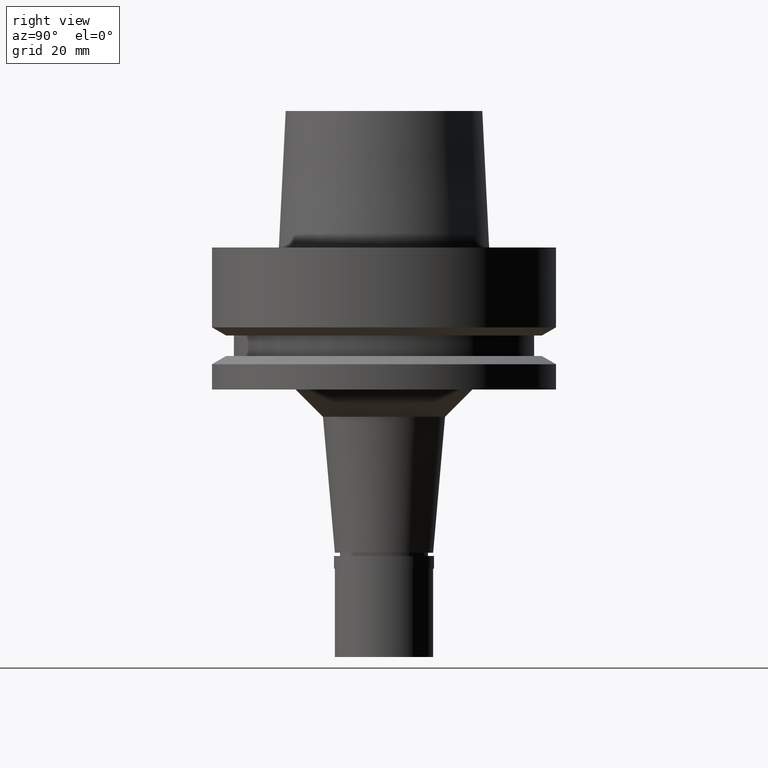
[diagram: clean part render]
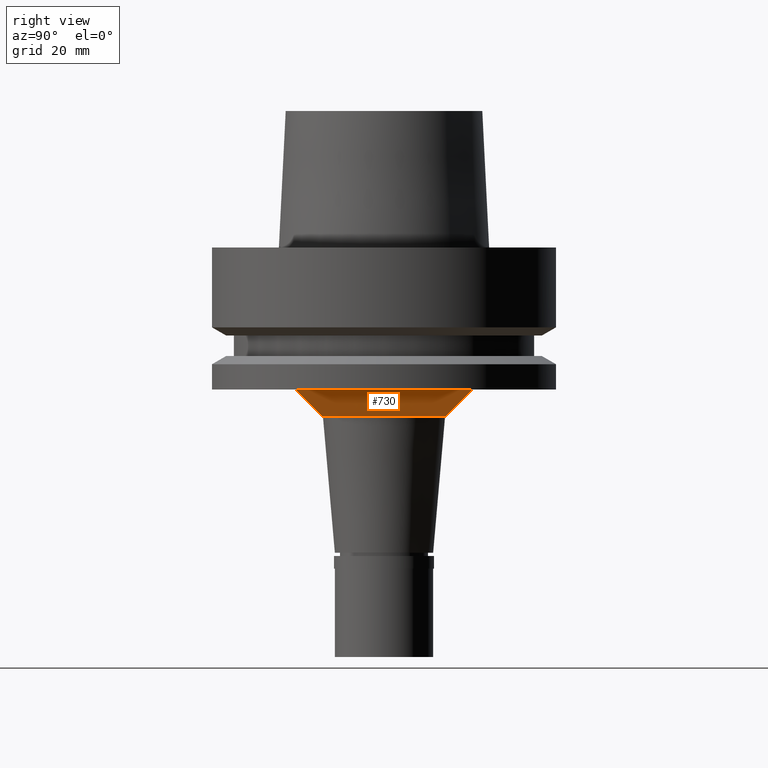
[diagram: same view with one face highlighted and labeled with its STEP entity id]
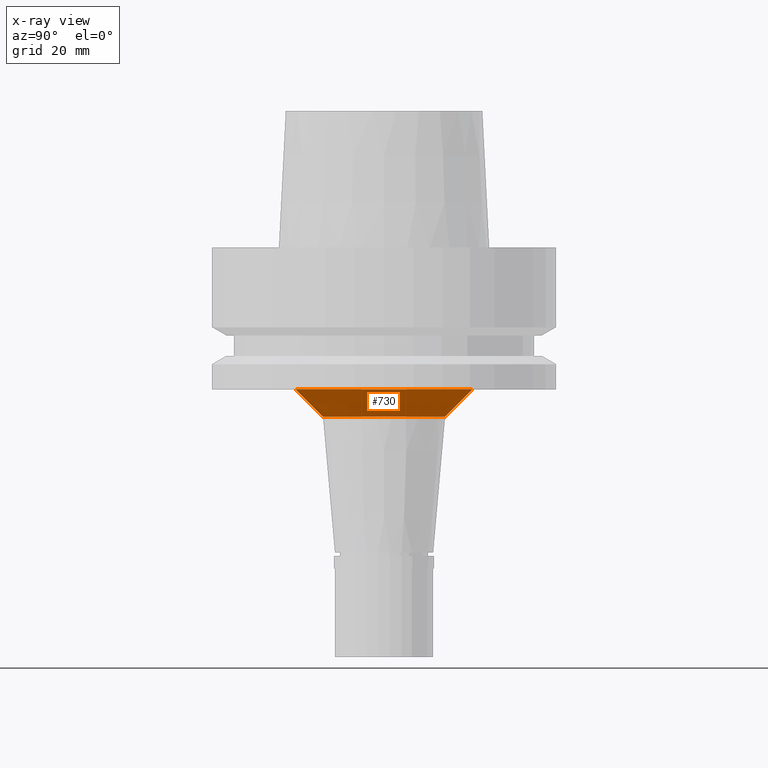
[diagram: x-ray of the same camera — body ghosted, the highlighted face saturated]
A machine part, right view. The second image highlights one B-rep face of the part: STEP entity #730.
The next image is the same camera in x-ray: the body ghosted, the highlighted face saturated — about 0% of this face is hidden behind the body in this view.
In plain terms, the highlighted conical surface has half-angle 45 deg.
Its self-contained STEP definition (entity closure, byte-faithful):
#213 = AXIS2_PLACEMENT_3D ( 'NONE', #1976, #1747, #2197 ) ;
#261 = DIRECTION ( 'NONE',  ( 0.0000000000000000000, 0.0000000000000000000, 1.000000000000000000 ) ) ;
#321 = DIRECTION ( 'NONE',  ( 0.0000000000000000000, -0.7071067811865969777, -0.7071067811864980568 ) ) ;
#358 = CARTESIAN_POINT ( 'NONE',  ( 0.0000000000000000000, 0.0000000000000000000, -26.00000000000000000 ) ) ;
#397 = VECTOR ( 'NONE', #1415, 1000.000000000000000 ) ;
#421 = CARTESIAN_POINT ( 'NONE',  ( 0.0000000000000000000, 16.17846772180000059, -26.00000000000000000 ) ) ;
#508 = CARTESIAN_POINT ( 'NONE',  ( 0.0000000000000000000, 16.17846772180000059, -26.00000000000000000 ) ) ;
#540 = DIRECTION ( 'NONE',  ( 0.0000000000000000000, 1.000000000000000000, 0.0000000000000000000 ) ) ;
#594 = CONICAL_SURFACE ( 'NONE', #213, 13.67846772179999881, 0.7853981633972997312 ) ;
#710 = CARTESIAN_POINT ( 'NONE',  ( 0.0000000000000000000, -11.17846772179999881, -31.00000000000000000 ) ) ;
#730 = ADVANCED_FACE ( 'NONE', ( #1537 ), #594, .T. ) ;
#798 = LINE ( 'NONE', #978, #397 ) ;
#868 = CIRCLE ( 'NONE', #2136, 11.17846772179999881 ) ;
#968 = EDGE_CURVE ( 'NONE', #1801, #1669, #2395, .T. ) ;
#974 = ORIENTED_EDGE ( 'NONE', *, *, #2648, .T. ) ;
#978 = CARTESIAN_POINT ( 'NONE',  ( 0.0000000000000000000, -16.17846772180000059, -26.00000000000000000 ) ) ;
#989 = DIRECTION ( 'NONE',  ( 0.0000000000000000000, 0.0000000000000000000, -1.000000000000000000 ) ) ;
#1042 = VERTEX_POINT ( 'NONE', #1842 ) ;
#1324 = LINE ( 'NONE', #508, #2005 ) ;
#1415 = DIRECTION ( 'NONE',  ( 0.0000000000000000000, 0.7071067811865969777, -0.7071067811864980568 ) ) ;
#1495 = ORIENTED_EDGE ( 'NONE', *, *, #1962, .F. ) ;
#1537 = FACE_OUTER_BOUND ( 'NONE', #1957, .T. ) ;
#1669 = VERTEX_POINT ( 'NONE', #2464 ) ;
#1747 = DIRECTION ( 'NONE',  ( 0.0000000000000000000, 0.0000000000000000000, 1.000000000000000000 ) ) ;
#1801 = VERTEX_POINT ( 'NONE', #421 ) ;
#1840 = ORIENTED_EDGE ( 'NONE', *, *, #968, .T. ) ;
#1842 = CARTESIAN_POINT ( 'NONE',  ( 0.0000000000000000000, 11.17846772179999881, -31.00000000000000000 ) ) ;
#1851 = CARTESIAN_POINT ( 'NONE',  ( 0.0000000000000000000, 0.0000000000000000000, -31.00000000000000000 ) ) ;
#1917 = ORIENTED_EDGE ( 'NONE', *, *, #2487, .T. ) ;
#1942 = VERTEX_POINT ( 'NONE', #710 ) ;
#1957 = EDGE_LOOP ( 'NONE', ( #1840, #974, #1917, #1495 ) ) ;
#1962 = EDGE_CURVE ( 'NONE', #1801, #1042, #1324, .T. ) ;
#1976 = CARTESIAN_POINT ( 'NONE',  ( 0.0000000000000000000, 0.0000000000000000000, -28.50000000000000000 ) ) ;
#2005 = VECTOR ( 'NONE', #321, 1000.000000000000000 ) ;
#2136 = AXIS2_PLACEMENT_3D ( 'NONE', #1851, #261, #2178 ) ;
#2178 = DIRECTION ( 'NONE',  ( 0.0000000000000000000, -1.000000000000000000, 0.0000000000000000000 ) ) ;
#2197 = DIRECTION ( 'NONE',  ( 0.0000000000000000000, 1.000000000000000000, 0.0000000000000000000 ) ) ;
#2222 = AXIS2_PLACEMENT_3D ( 'NONE', #358, #989, #540 ) ;
#2395 = CIRCLE ( 'NONE', #2222, 16.17846772180000059 ) ;
#2464 = CARTESIAN_POINT ( 'NONE',  ( 0.0000000000000000000, -16.17846772180000059, -26.00000000000000000 ) ) ;
#2487 = EDGE_CURVE ( 'NONE', #1942, #1042, #868, .T. ) ;
#2648 = EDGE_CURVE ( 'NONE', #1669, #1942, #798, .T. ) ;